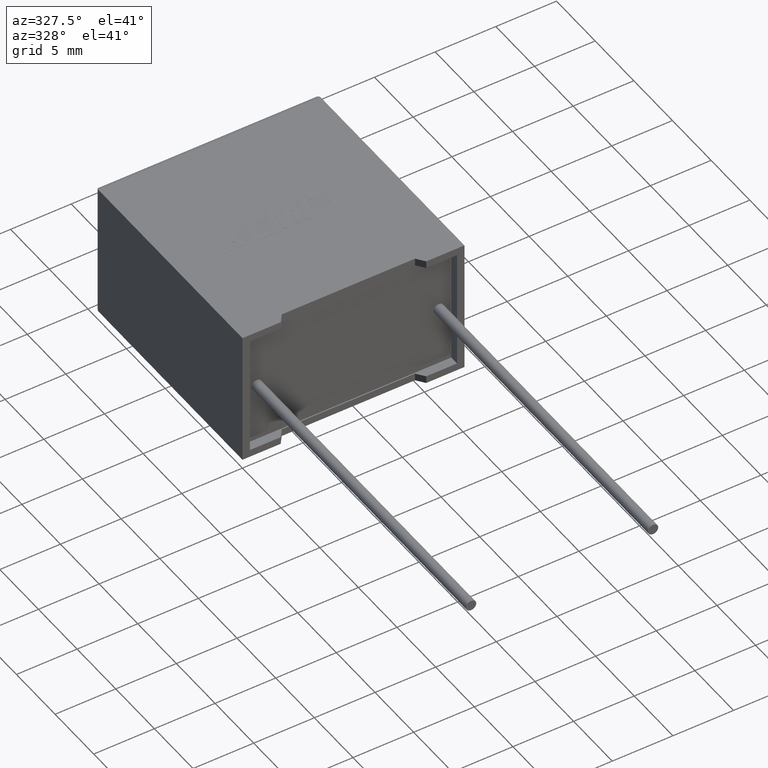
[diagram: clean part render]
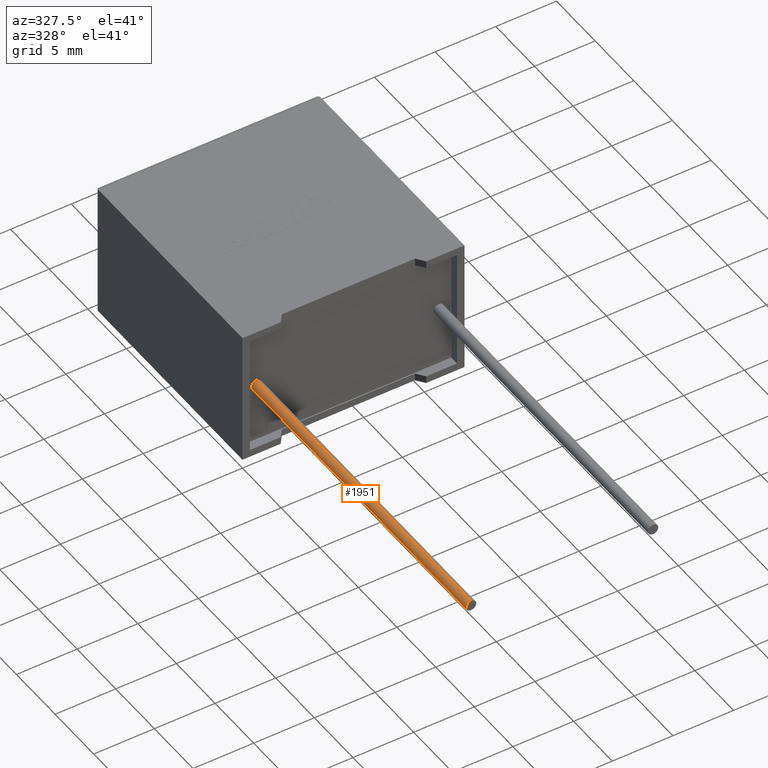
[diagram: same view with one face highlighted and labeled with its STEP entity id]
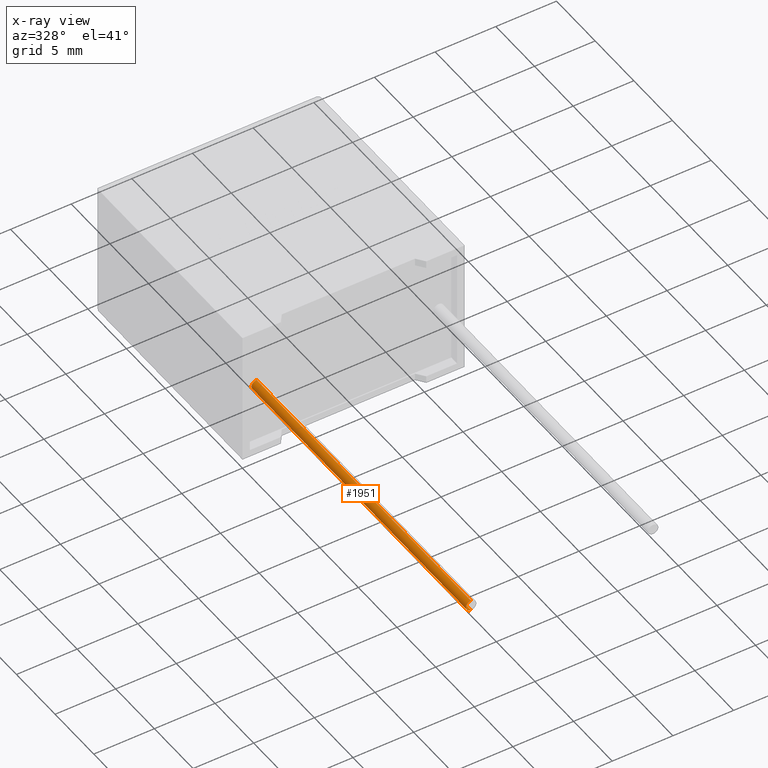
[diagram: x-ray of the same camera — body ghosted, the highlighted face saturated]
A machine part, auxiliary view. The second image highlights one B-rep face of the part: STEP entity #1951.
The next image is the same camera in x-ray: the body ghosted, the highlighted face saturated — about 0% of this face is hidden behind the body in this view.
In plain terms, the highlighted cylindrical surface (edge-blend (fillet) strip) has radius 0.425 mm, axis along (-0, 1, -0).
Its self-contained STEP definition (entity closure, byte-faithful):
#19 = CYLINDRICAL_SURFACE ( 'NONE', #1554, 0.4250000000000000444 ) ;
#77 = DIRECTION ( 'NONE',  ( -0.000000000000000000, 1.000000000000000000, -0.000000000000000000 ) ) ;
#185 = CIRCLE ( 'NONE', #2411, 0.4250000000000000444 ) ;
#231 = EDGE_LOOP ( 'NONE', ( #265, #461, #775, #1192 ) ) ;
#265 = ORIENTED_EDGE ( 'NONE', *, *, #2965, .F. ) ;
#364 = VECTOR ( 'NONE', #77, 1000.000000000000000 ) ;
#461 = ORIENTED_EDGE ( 'NONE', *, *, #622, .F. ) ;
#485 = DIRECTION ( 'NONE',  ( 0.000000000000000000, 0.000000000000000000, -1.000000000000000000 ) ) ;
#539 = DIRECTION ( 'NONE',  ( 0.000000000000000000, 0.000000000000000000, 1.000000000000000000 ) ) ;
#547 = VECTOR ( 'NONE', #634, 1000.000000000000000 ) ;
#622 = EDGE_CURVE ( 'NONE', #1679, #1498, #185, .T. ) ;
#634 = DIRECTION ( 'NONE',  ( -0.000000000000000000, 1.000000000000000000, -0.000000000000000000 ) ) ;
#742 = EDGE_CURVE ( 'NONE', #1069, #1063, #837, .T. ) ;
#758 = DIRECTION ( 'NONE',  ( 0.000000000000000000, -1.000000000000000000, 0.000000000000000000 ) ) ;
#775 = ORIENTED_EDGE ( 'NONE', *, *, #1147, .T. ) ;
#837 = CIRCLE ( 'NONE', #1236, 0.4250000000000000444 ) ;
#983 = CARTESIAN_POINT ( 'NONE',  ( 1.650000000000000355, -27.00000000000000000, 6.025000000000000355 ) ) ;
#1063 = VERTEX_POINT ( 'NONE', #1548 ) ;
#1069 = VERTEX_POINT ( 'NONE', #2693 ) ;
#1147 = EDGE_CURVE ( 'NONE', #1679, #1069, #2740, .T. ) ;
#1168 = CARTESIAN_POINT ( 'NONE',  ( 1.650000000000000355, -27.00000000000000000, 5.174999999999999822 ) ) ;
#1192 = ORIENTED_EDGE ( 'NONE', *, *, #742, .T. ) ;
#1236 = AXIS2_PLACEMENT_3D ( 'NONE', #1464, #758, #485 ) ;
#1427 = DIRECTION ( 'NONE',  ( -0.000000000000000000, 1.000000000000000000, -0.000000000000000000 ) ) ;
#1464 = CARTESIAN_POINT ( 'NONE',  ( 1.650000000000000355, 0.7500000000000000000, 5.599999999999999645 ) ) ;
#1498 = VERTEX_POINT ( 'NONE', #1168 ) ;
#1519 = CARTESIAN_POINT ( 'NONE',  ( 1.650000000000000355, -27.00000000000000000, 5.174999999999999822 ) ) ;
#1548 = CARTESIAN_POINT ( 'NONE',  ( 1.650000000000000355, 0.7500000000000000000, 5.174999999999999822 ) ) ;
#1554 = AXIS2_PLACEMENT_3D ( 'NONE', #2596, #1427, #539 ) ;
#1593 = DIRECTION ( 'NONE',  ( 0.000000000000000000, -1.000000000000000000, 0.000000000000000000 ) ) ;
#1609 = CARTESIAN_POINT ( 'NONE',  ( 1.650000000000000355, -27.00000000000000000, 6.025000000000000355 ) ) ;
#1679 = VERTEX_POINT ( 'NONE', #983 ) ;
#1951 = ADVANCED_FACE ( 'NONE', ( #2517 ), #19, .T. ) ;
#1999 = LINE ( 'NONE', #1519, #364 ) ;
#2310 = DIRECTION ( 'NONE',  ( 0.000000000000000000, 0.000000000000000000, -1.000000000000000000 ) ) ;
#2411 = AXIS2_PLACEMENT_3D ( 'NONE', #2741, #1593, #2310 ) ;
#2517 = FACE_OUTER_BOUND ( 'NONE', #231, .T. ) ;
#2596 = CARTESIAN_POINT ( 'NONE',  ( 1.650000000000000355, -27.00000000000000000, 5.599999999999999645 ) ) ;
#2693 = CARTESIAN_POINT ( 'NONE',  ( 1.650000000000000355, 0.7500000000000000000, 6.025000000000000355 ) ) ;
#2740 = LINE ( 'NONE', #1609, #547 ) ;
#2741 = CARTESIAN_POINT ( 'NONE',  ( 1.650000000000000355, -27.00000000000000000, 5.599999999999999645 ) ) ;
#2965 = EDGE_CURVE ( 'NONE', #1498, #1063, #1999, .T. ) ;